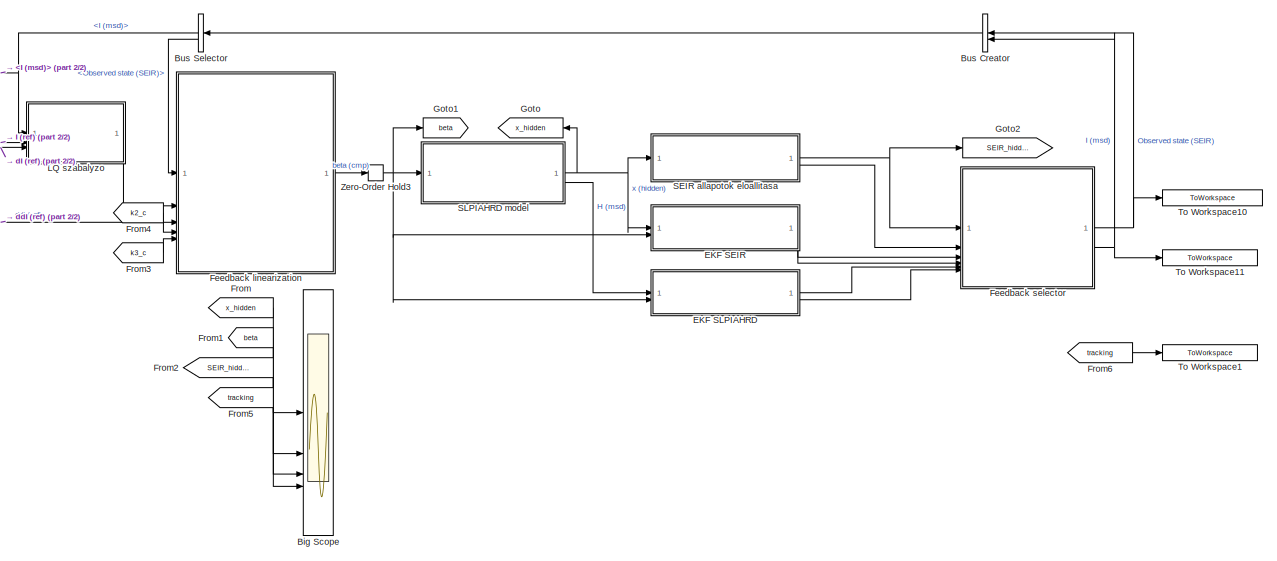
[diagram: root canvas - part 1/2, most of the canvas]
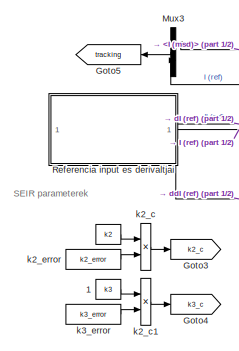
[diagram: root canvas - part 2/2, middle left region]
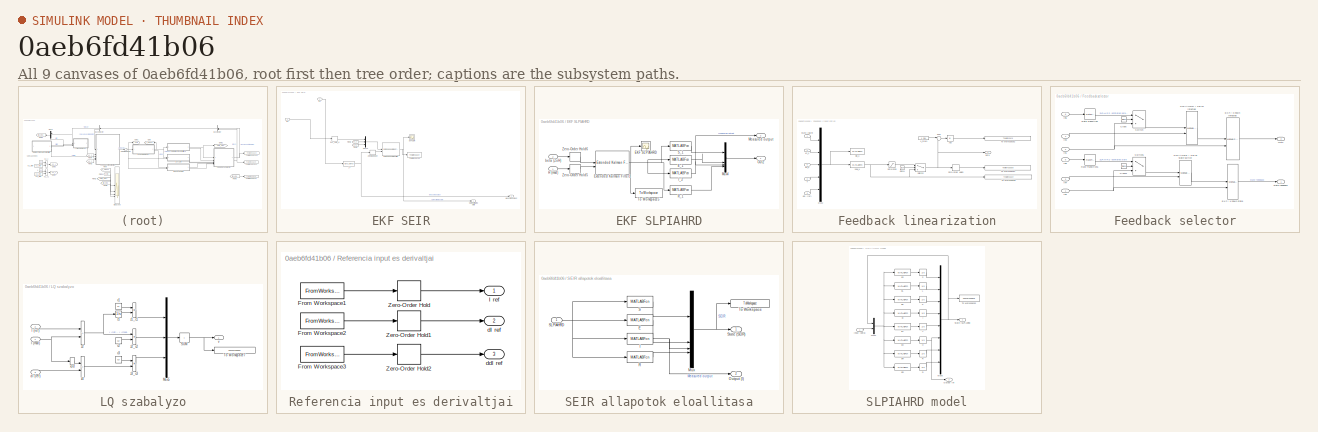
[diagram: thumbnail index - all 9 canvases of the model, root first then tree order]
MODEL slx_0aeb6fd41b06
KIND model
CONFIG AbsTol = auto
CONFIG EnableMultiTasking = off
CONFIG FixedStep = auto
CONFIG MaxStep = auto
CONFIG MinStep = auto
CONFIG RelTol = 1e-10
CONFIG SampleTimeConstraint = Unconstrained
CONFIG SolverName = VariableStepAuto
CONFIG StartTime = 0.0
CONFIG StopTime = tf
BLOCK [Constant]  
  Value = k2
BLOCK [Constant]  1
  Value = k3
BLOCK [Scope] Big Scope
  Floating = off
  NumInputPorts = 8
  ScopeSpecificationString = Simulink.scopes.TimeScopeBlockCfg('CurrentConfiguration', extmgr.ConfigurationSet(extmgr.Configuration('Core','General UI',true,'FigureColor',[1 1 1]),extmgr.Configuration('Core','Source UI',true),extmgr.Configuration('Sources','WiredSimulink',true,'DataLoggingVariableName','ScopeData1'),extmgr.Configuration('Visuals','Time Domain',true,'SerializedDisplays',{struct('MinYLimReal','-0.125','MaxYLimR...<+7369ch>
BLOCK [BusCreator] Bus Creator
  DisplayOption = bar
  InheritFromInputs = on
  Inputs = 2
  NameLocation = top
BLOCK [BusSelector] Bus Selector
  NameLocation = top
  OutputSignals = I (msd),Observed state (SEIR)
BLOCK [SubSystem] EKF SEIR
  NameLocation = right
BLOCK [Scope] EKF SEIR/EKF SEIR
  Floating = off
  NumInputPorts = 1
  ScopeSpecificationString = Simulink.scopes.TimeScopeBlockCfg('CurrentConfiguration', extmgr.ConfigurationSet(extmgr.Configuration('Core','General UI',true),extmgr.Configuration('Core','Source UI',true),extmgr.Configuration('Sources','WiredSimulink',true,'DataLoggingVariableName','ScopeData1'),extmgr.Configuration('Visuals','Time Domain',true,'SerializedDisplays',{struct('MinYLimReal','-0.125','MaxYLimReal','1.125','YLabelRe...<+1468ch>
BLOCK [ZeroOrderHold] EKF SEIR/EKF_SEIR_U
  SampleTime = ekf_sample_time
BLOCK [Reference] EKF SEIR/Extended Kalman Filter  REF=sharedTrackingLibrary/Extended Kalman Filter
  SourceBlock = sharedTrackingLibrary/Extended Kalman Filter
  SourceType = Extended Kalman Filter
BLOCK [From] EKF SEIR/From1
  GotoTag = k3_c
BLOCK [From] EKF SEIR/From2
  GotoTag = k2_c
BLOCK [MATLABFcn] EKF SEIR/I_1
  MATLABFcn = u(3)+u(4)+u(5)
  Output1D = off
  OutputDimensions = 1
BLOCK [Inport] EKF SEIR/In1
BLOCK [Inport] EKF SEIR/In2
  Port = 2
BLOCK [Outport] EKF SEIR/Measured output
  Port = 2
BLOCK [Mux] EKF SEIR/Mux10
  DisplayOption = bar
  Inputs = 3
BLOCK [Outport] EKF SEIR/SEIR estimated state
BLOCK [ToWorkspace] EKF SEIR/To Workspace9
  FixptAsFi = on
  MaxDataPoints = inf
  SampleTime = -1
  SaveFormat = Timeseries
  VariableName = ekf_seir
BLOCK [ZeroOrderHold] EKF SEIR/Zero-Order Hold4
  SampleTime = ekf_sample_time
BLOCK [SubSystem] EKF SLPIAHRD
  NameLocation = right
BLOCK [Scope] EKF SLPIAHRD/EKF SLPIAHRD
  Floating = off
  NumInputPorts = 1
  ScopeSpecificationString = Simulink.scopes.TimeScopeBlockCfg('CurrentConfiguration', extmgr.ConfigurationSet(extmgr.Configuration('Core','General UI',true),extmgr.Configuration('Core','Source UI',true),extmgr.Configuration('Sources','WiredSimulink',true,'DataLoggingVariableName','ScopeData1'),extmgr.Configuration('Visuals','Time Domain',true,'SerializedDisplays',{struct('MinYLimReal','-0.125','MaxYLimReal','1.12499','YLabel...<+1605ch>
BLOCK [MATLABFcn] EKF SLPIAHRD/E_1
  MATLABFcn = u(2)
BLOCK [Reference] EKF SLPIAHRD/Extended Kalman Filter1  REF=sharedTrackingLibrary/Extended Kalman Filter
  SourceBlock = sharedTrackingLibrary/Extended Kalman Filter
  SourceType = Extended Kalman Filter
BLOCK [Inport] EKF SLPIAHRD/H (msd)
BLOCK [MATLABFcn] EKF SLPIAHRD/I_2
  MATLABFcn = u(3)+u(4)+u(5)
BLOCK [Outport] EKF SLPIAHRD/Measured output
  Port = 2
BLOCK [Mux] EKF SLPIAHRD/Mux4
  DisplayOption = bar
BLOCK [Outport] EKF SLPIAHRD/Out2
BLOCK [MATLABFcn] EKF SLPIAHRD/R_1
  MATLABFcn = u(6)+u(7)+u(8)
BLOCK [MATLABFcn] EKF SLPIAHRD/S_1
  MATLABFcn = u(1)
BLOCK [ToWorkspace] EKF SLPIAHRD/To Workspace5
  FixptAsFi = on
  MaxDataPoints = inf
  SampleTime = -1
  SaveFormat = Timeseries
  VariableName = ekf_slpiahrd
BLOCK [ZeroOrderHold] EKF SLPIAHRD/Zero-Order Hold5
  SampleTime = ekf_sample_time
BLOCK [ZeroOrderHold] EKF SLPIAHRD/Zero-Order Hold6
  NameLocation = top
  SampleTime = ekf_sample_time
BLOCK [Inport] EKF SLPIAHRD/beta (ZoH)
  NameLocation = left
  Port = 2
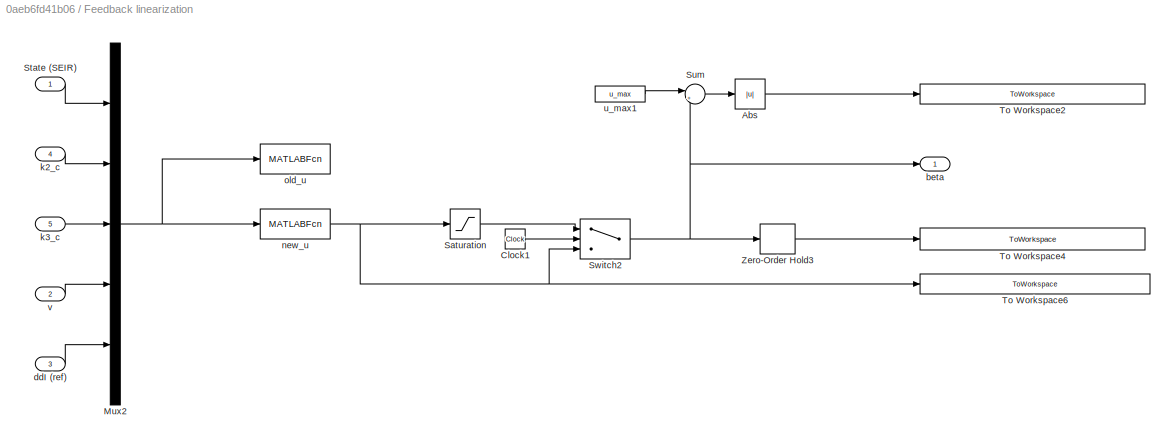
BLOCK [SubSystem] Feedback linearization
  NameLocation = top
BLOCK [Constant] Feedback linearization/ u_max1
  Value = u_max
BLOCK [Abs] Feedback linearization/Abs
  SaturateOnIntegerOverflow = off
BLOCK [Clock] Feedback linearization/Clock1
BLOCK [Mux] Feedback linearization/Mux2
  DisplayOption = bar
  Inputs = 5
BLOCK [Saturate] Feedback linearization/Saturation
  LowerLimit = u_min
  UpperLimit = u_max
BLOCK [Inport] Feedback linearization/State (SEIR)
  NameLocation = left
BLOCK [Sum] Feedback linearization/Sum
  Inputs = |+-
BLOCK [Switch] Feedback linearization/Switch2
  InputSameDT = off
  SaturateOnIntegerOverflow = off
BLOCK [ToWorkspace] Feedback linearization/To Workspace2
  FixptAsFi = on
  MaxDataPoints = inf
  SampleTime = -1
  SaveFormat = Timeseries
  VariableName = coi_tmp
BLOCK [ToWorkspace] Feedback linearization/To Workspace4
  FixptAsFi = on
  MaxDataPoints = inf
  SampleTime = -1
  SaveFormat = Timeseries
  VariableName = system_input
BLOCK [ToWorkspace] Feedback linearization/To Workspace6
  FixptAsFi = on
  MaxDataPoints = inf
  SampleTime = -1
  SaveFormat = Timeseries
  VariableName = raw_system_input
BLOCK [ZeroOrderHold] Feedback linearization/Zero-Order Hold3
  SampleTime = input_sample_time
BLOCK [Outport] Feedback linearization/beta
  NameLocation = right
BLOCK [Inport] Feedback linearization/ddI (ref)
  NameLocation = left
  Port = 3
BLOCK [Inport] Feedback linearization/k2_c
  NameLocation = left
  Port = 4
BLOCK [Inport] Feedback linearization/k3_c
  NameLocation = left
  Port = 5
BLOCK [MATLABFcn] Feedback linearization/new_u
  MATLABFcn = (u(8)-u(7)+(u(5)*u(6)+u(5)^2)*u(2)-u(6)^2*u(3))/(u(5)*u(1)*u(3))
BLOCK [MATLABFcn] Feedback linearization/old_u
  MATLABFcn = u(8)+(-u(7)+(u(5)*u(6)+u(5)^2)*u(2)-u(6)^2*u(3))/(u(5)*u(1)*u(3))
BLOCK [Inport] Feedback linearization/v
  NameLocation = left
  Port = 2
BLOCK [SubSystem] Feedback selector
BLOCK [Clock] Feedback selector/Clock
BLOCK [Clock] Feedback selector/Clock1
BLOCK [ManualSwitch] Feedback selector/EKF // Known infected
  CurrentSetting = 0
  NameLocation = top
BLOCK [ManualSwitch] Feedback selector/EKF // Known state
  CurrentSetting = 0
BLOCK [Inport] Feedback selector/In1
  Port = 2
BLOCK [Inport] Feedback selector/In2
BLOCK [Inport] Feedback selector/In3
  Port = 4
BLOCK [Inport] Feedback selector/In4
  Port = 3
BLOCK [Inport] Feedback selector/In5
  Port = 6
BLOCK [Inport] Feedback selector/In6
  Port = 5
BLOCK [Outport] Feedback selector/Out2
  NameLocation = top
  Port = 2
BLOCK [RateTransition] Feedback selector/Rate Transition
  Integrity = off
  OutPortSampleTime = ratetrans_sample_time
  OutPortSampleTimeMultiple = 2
BLOCK [RateTransition] Feedback selector/Rate Transition1
  Integrity = off
  OutPortSampleTime = ratetrans_sample_time
BLOCK [ManualSwitch] Feedback selector/SLPIAHRD // SEIR infected
  CurrentSetting = 0
  NameLocation = top
BLOCK [ManualSwitch] Feedback selector/SLPIAHRD // SEIR state switch
  CurrentSetting = 0
  NameLocation = top
BLOCK [Switch] Feedback selector/Switch
  Criteria = u2 > Threshold
  InputSameDT = off
  SaturateOnIntegerOverflow = off
  Threshold = switchtime
BLOCK [Switch] Feedback selector/Switch1
  Criteria = u2 > Threshold
  InputSameDT = off
  SaturateOnIntegerOverflow = off
  Threshold = switchtime
BLOCK [Outport] Feedback selector/state feedback
BLOCK [From] From
  GotoTag = x_hidden
BLOCK [From] From1
  GotoTag = beta
BLOCK [From] From2
  GotoTag = SEIR_hidden
BLOCK [From] From3
  GotoTag = k3_c
BLOCK [From] From4
  GotoTag = k2_c
BLOCK [From] From5
  GotoTag = tracking
  NameLocation = top
BLOCK [From] From6
  GotoTag = tracking
  NameLocation = top
BLOCK [Goto] Goto
  GotoTag = x_hidden
  NameLocation = top
BLOCK [Goto] Goto1
  GotoTag = beta
BLOCK [Goto] Goto2
  GotoTag = SEIR_hidden
BLOCK [Goto] Goto3
  GotoTag = k2_c
BLOCK [Goto] Goto4
  GotoTag = k3_c
BLOCK [Goto] Goto5
  GotoTag = tracking
  NameLocation = top
BLOCK [SubSystem] LQ szabalyzo
  NameLocation = top
BLOCK [Constant] LQ szabalyzo/ c1
  NameLocation = left
  Value = c1
BLOCK [Constant] LQ szabalyzo/ c2
  Value = c2
BLOCK [Constant] LQ szabalyzo/ c3
  Value = c3
BLOCK [Inport] LQ szabalyzo/I (msd)
  NameLocation = left
BLOCK [Inport] LQ szabalyzo/I (ref)
  NameLocation = left
  Port = 2
BLOCK [Mux] LQ szabalyzo/Mux5
  DisplayOption = bar
  Inputs = 3
BLOCK [Sum] LQ szabalyzo/SUM
  IconShape = rectangular
  Inputs = +
BLOCK [ToWorkspace] LQ szabalyzo/To Workspace7
  FixptAsFi = on
  MaxDataPoints = inf
  SampleTime = -1
  SaveFormat = Timeseries
  VariableName = controller_output
BLOCK [Inport] LQ szabalyzo/dI (ref)
  NameLocation = left
  Port = 3
BLOCK [Outport] LQ szabalyzo/v
  NameLocation = right
BLOCK [Derivative] LQ szabalyzo/x3d
BLOCK [Integrator] LQ szabalyzo/z1
  InitialCondition = z1_start
BLOCK [Product] LQ szabalyzo/z1_c1
BLOCK [Sum] LQ szabalyzo/z2
  IconShape = rectangular
  Inputs = +-
BLOCK [Product] LQ szabalyzo/z2_c2
BLOCK [Sum] LQ szabalyzo/z3
  IconShape = rectangular
  Inputs = -+
BLOCK [Product] LQ szabalyzo/z3_c3
BLOCK [Mux] Mux3
  DisplayOption = bar
  Inputs = 2
  NameLocation = top
BLOCK [SubSystem] Referencia input es derivaltjai
BLOCK [FromWorkspace] Referencia input es derivaltjai/From Workspace1
  SampleTime = dt
  VariableName = Iref
BLOCK [FromWorkspace] Referencia input es derivaltjai/From Workspace2
  SampleTime = dt
  VariableName = Irefd
BLOCK [FromWorkspace] Referencia input es derivaltjai/From Workspace3
  SampleTime = dt
  VariableName = Irefdd
BLOCK [Outport] Referencia input es derivaltjai/I ref
  NameLocation = right
BLOCK [ZeroOrderHold] Referencia input es derivaltjai/Zero-Order Hold
  SampleTime = ref_sample_time
BLOCK [ZeroOrderHold] Referencia input es derivaltjai/Zero-Order Hold1
  SampleTime = ref_sample_time
BLOCK [ZeroOrderHold] Referencia input es derivaltjai/Zero-Order Hold2
  SampleTime = ref_sample_time
BLOCK [Outport] Referencia input es derivaltjai/dI ref
  NameLocation = right
  Port = 2
BLOCK [Outport] Referencia input es derivaltjai/ddI ref
  NameLocation = right
  Port = 3
BLOCK [SubSystem] SEIR allapotok eloallitasa
BLOCK [MATLABFcn] SEIR allapotok eloallitasa/E
  MATLABFcn = u(2)
BLOCK [MATLABFcn] SEIR allapotok eloallitasa/I
  MATLABFcn = u(3)+u(4)+u(5)
BLOCK [Mux] SEIR allapotok eloallitasa/Mux
  DisplayOption = bar
BLOCK [Outport] SEIR allapotok eloallitasa/Output (I)
  NameLocation = right
  Port = 2
BLOCK [MATLABFcn] SEIR allapotok eloallitasa/R
  MATLABFcn = u(6)+u(7)+u(8)
BLOCK [MATLABFcn] SEIR allapotok eloallitasa/S
  MATLABFcn = u(1)
BLOCK [Inport] SEIR allapotok eloallitasa/SLPIAHRD
  NameLocation = left
BLOCK [Outport] SEIR allapotok eloallitasa/State (SEIR)
  NameLocation = right
BLOCK [ToWorkspace] SEIR allapotok eloallitasa/To Workspace
  FixptAsFi = on
  MaxDataPoints = inf
  SampleTime = -1
  SaveFormat = Structure With Time
  VariableName = seir_states
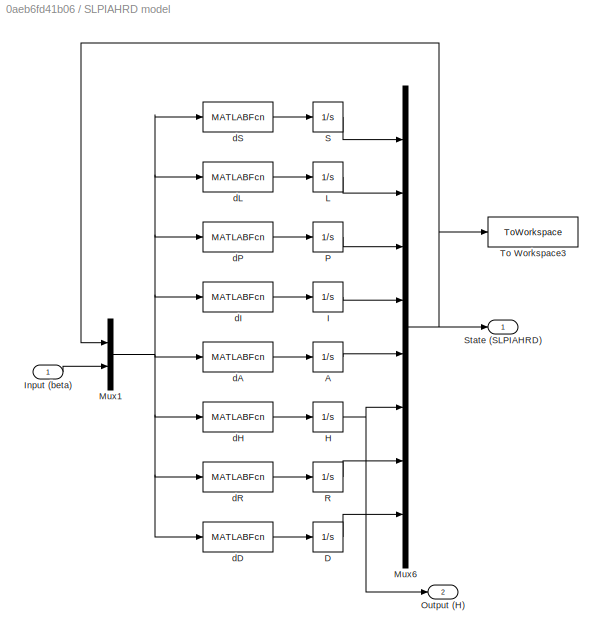
BLOCK [SubSystem] SLPIAHRD model
BLOCK [Integrator] SLPIAHRD model/A
  InitialCondition = x0(5)
BLOCK [Integrator] SLPIAHRD model/D
  InitialCondition = x0(8)
BLOCK [Integrator] SLPIAHRD model/H
  InitialCondition = x0(6)
BLOCK [Integrator] SLPIAHRD model/I
  InitialCondition = x0(4)
BLOCK [Inport] SLPIAHRD model/Input (beta)
  NameLocation = left
BLOCK [Integrator] SLPIAHRD model/L
  InitialCondition = x0(2)
BLOCK [Mux] SLPIAHRD model/Mux1
  DisplayOption = bar
  Inputs = 2
BLOCK [Mux] SLPIAHRD model/Mux6
  DisplayOption = bar
  Inputs = 8
BLOCK [Outport] SLPIAHRD model/Output (H)
  NameLocation = right
  Port = 2
BLOCK [Integrator] SLPIAHRD model/P
  InitialCondition = x0(3)
BLOCK [Integrator] SLPIAHRD model/R
  InitialCondition = x0(7)
BLOCK [Integrator] SLPIAHRD model/S
  InitialCondition = x0(1)
BLOCK [Outport] SLPIAHRD model/State (SLPIAHRD)
  NameLocation = right
BLOCK [ToWorkspace] SLPIAHRD model/To Workspace3
  FixptAsFi = on
  MaxDataPoints = inf
  SampleTime = -1
  SaveFormat = Timeseries
  VariableName = slpiahrd_states
BLOCK [MATLABFcn] SLPIAHRD model/dA
  MATLABFcn = ((1 - q) * p * u(3) - p_A * u(5))/N
  Output1D = off
BLOCK [MATLABFcn] SLPIAHRD model/dD
  MATLABFcn = (mu * h * u(6))/N
  Output1D = off
BLOCK [MATLABFcn] SLPIAHRD model/dH
  MATLABFcn = (p_I * eta * u(4) - h * u(6))/N
  Output1D = off
BLOCK [MATLABFcn] SLPIAHRD model/dI
  MATLABFcn = (q * p * u(3) - p_I * u(4))/N
  Output1D = off
BLOCK [MATLABFcn] SLPIAHRD model/dL
  MATLABFcn = u(9)*(u(3)+u(4)+delta*u(5))*u(1)/N-alpha*u(2)
  Output1D = off
BLOCK [MATLABFcn] SLPIAHRD model/dP
  MATLABFcn = (alpha * u(2)) - (p *u(3))
  Output1D = off
BLOCK [MATLABFcn] SLPIAHRD model/dR
  MATLABFcn = (p_I * (1 - eta) * u(4) + p_A * u(5) + (1 - mu) * h * u(6))/N
  Output1D = off
BLOCK [MATLABFcn] SLPIAHRD model/dS
  MATLABFcn = -u(9) * (u(3) + u(4) + delta * u(5)) * u(1) / N
  Output1D = off
BLOCK [ToWorkspace] To Workspace1
  FixptAsFi = on
  MaxDataPoints = inf
  SampleTime = -1
  SaveFormat = Structure With Time
  VariableName = I_v_ref
BLOCK [ToWorkspace] To Workspace10
  FixptAsFi = on
  MaxDataPoints = inf
  SampleTime = -1
  SaveFormat = Timeseries
  VariableName = feedback_state
BLOCK [ToWorkspace] To Workspace11
  FixptAsFi = on
  MaxDataPoints = inf
  SampleTime = -1
  SaveFormat = Timeseries
  VariableName = feedback_output
BLOCK [ZeroOrderHold] Zero-Order Hold3
  SampleTime = input_sample_time
BLOCK [Product] k2_c
BLOCK [Product] k2_c1
BLOCK [Constant] k2_error
  Value = k2_error
BLOCK [Constant] k3_error
  Value = k3_error
ANNOTATION (root): SEIR parameterek
LINE  1:1 -> k2_c1:1
LINE  :1 -> k2_c:1
LINE Bus Creator:1 -> Bus Selector:1
NET Bus Selector:1 -> LQ szabalyzo:1, Mux3:1
LINE Bus Selector:2 -> Feedback linearization:1
LINE EKF SEIR/EKF_SEIR_U:1 -> EKF SEIR/Mux10:1
NET EKF SEIR/Extended Kalman Filter:1 -> EKF SEIR/EKF SEIR:1, EKF SEIR/SEIR estimated state:1, EKF SEIR/To Workspace9:1
LINE EKF SEIR/From1:1 -> EKF SEIR/Mux10:3
LINE EKF SEIR/From2:1 -> EKF SEIR/Mux10:2
NET EKF SEIR/I_1:1 -> EKF SEIR/Measured output:1, EKF SEIR/Zero-Order Hold4:1
LINE EKF SEIR/In1:1 -> EKF SEIR/I_1:1
LINE EKF SEIR/In2:1 -> EKF SEIR/EKF_SEIR_U:1
LINE EKF SEIR/Mux10:1 -> EKF SEIR/Extended Kalman Filter:1
LINE EKF SEIR/Zero-Order Hold4:1 -> EKF SEIR/Extended Kalman Filter:2
LINE EKF SEIR:1 -> Feedback selector:3
LINE EKF SEIR:2 -> Feedback selector:4
LINE EKF SLPIAHRD/E_1:1 -> EKF SLPIAHRD/Mux4:2
NET EKF SLPIAHRD/Extended Kalman Filter1:1 -> EKF SLPIAHRD/EKF SLPIAHRD:1, EKF SLPIAHRD/E_1:1, EKF SLPIAHRD/I_2:1, EKF SLPIAHRD/R_1:1, EKF SLPIAHRD/S_1:1, EKF SLPIAHRD/To Workspace5:1
LINE EKF SLPIAHRD/H (msd):1 -> EKF SLPIAHRD/Zero-Order Hold5:1
NET EKF SLPIAHRD/I_2:1 -> EKF SLPIAHRD/Measured output:1, EKF SLPIAHRD/Mux4:3
LINE EKF SLPIAHRD/Mux4:1 -> EKF SLPIAHRD/Out2:1
LINE EKF SLPIAHRD/R_1:1 -> EKF SLPIAHRD/Mux4:4
LINE EKF SLPIAHRD/S_1:1 -> EKF SLPIAHRD/Mux4:1
LINE EKF SLPIAHRD/Zero-Order Hold5:1 -> EKF SLPIAHRD/Extended Kalman Filter1:2
LINE EKF SLPIAHRD/Zero-Order Hold6:1 -> EKF SLPIAHRD/Extended Kalman Filter1:1
LINE EKF SLPIAHRD/beta (ZoH):1 -> EKF SLPIAHRD/Zero-Order Hold6:1
LINE EKF SLPIAHRD:1 -> Feedback selector:5
LINE EKF SLPIAHRD:2 -> Feedback selector:6
LINE Feedback linearization/ u_max1:1 -> Feedback linearization/Sum:1
LINE Feedback linearization/Abs:1 -> Feedback linearization/To Workspace2:1
LINE Feedback linearization/Clock1:1 -> Feedback linearization/Switch2:2
NET Feedback linearization/Mux2:1 -> Feedback linearization/new_u:1, Feedback linearization/old_u:1
LINE Feedback linearization/Saturation:1 -> Feedback linearization/Switch2:1
LINE Feedback linearization/State (SEIR):1 -> Feedback linearization/Mux2:1
LINE Feedback linearization/Sum:1 -> Feedback linearization/Abs:1
NET Feedback linearization/Switch2:1 -> Feedback linearization/Sum:2, Feedback linearization/Zero-Order Hold3:1, Feedback linearization/beta:1
LINE Feedback linearization/Zero-Order Hold3:1 -> Feedback linearization/To Workspace4:1
LINE Feedback linearization/ddI (ref):1 -> Feedback linearization/Mux2:5
LINE Feedback linearization/k2_c:1 -> Feedback linearization/Mux2:2
LINE Feedback linearization/k3_c:1 -> Feedback linearization/Mux2:3
NET Feedback linearization/new_u:1 -> Feedback linearization/Saturation:1, Feedback linearization/Switch2:3, Feedback linearization/To Workspace6:1
LINE Feedback linearization/v:1 -> Feedback linearization/Mux2:4
LINE Feedback linearization:1 -> Zero-Order Hold3:1
LINE Feedback selector/Clock1:1 -> Feedback selector/Switch1:2
LINE Feedback selector/Clock:1 -> Feedback selector/Switch:2
LINE Feedback selector/EKF // Known infected:1 -> Feedback selector/Out2:1
LINE Feedback selector/EKF // Known state:1 -> Feedback selector/state feedback:1
NET Feedback selector/In1:1 -> Feedback selector/EKF // Known infected:2, Feedback selector/Switch:3
NET Feedback selector/In2:1 -> Feedback selector/EKF // Known state:2, Feedback selector/Switch1:3
LINE Feedback selector/In3:1 -> Feedback selector/SLPIAHRD // SEIR infected:2
LINE Feedback selector/In4:1 -> Feedback selector/SLPIAHRD // SEIR state switch:2
LINE Feedback selector/In5:1 -> Feedback selector/Rate Transition:1
LINE Feedback selector/In6:1 -> Feedback selector/Rate Transition1:1
LINE Feedback selector/Rate Transition1:1 -> Feedback selector/Switch1:1
LINE Feedback selector/Rate Transition:1 -> Feedback selector/Switch:1
LINE Feedback selector/SLPIAHRD // SEIR infected:1 -> Feedback selector/EKF // Known infected:1
LINE Feedback selector/SLPIAHRD // SEIR state switch:1 -> Feedback selector/EKF // Known state:1
LINE Feedback selector/Switch1:1 -> Feedback selector/SLPIAHRD // SEIR state switch:1
LINE Feedback selector/Switch:1 -> Feedback selector/SLPIAHRD // SEIR infected:1
NET Feedback selector:1 -> Bus Creator:1, To Workspace10:1
NET Feedback selector:2 -> Bus Creator:2, To Workspace11:1
LINE From1:1 -> Big Scope:2
LINE From2:1 -> Big Scope:3
LINE From3:1 -> Feedback linearization:5
LINE From4:1 -> Feedback linearization:4
LINE From5:1 -> Big Scope:4
LINE From6:1 -> To Workspace1:1
LINE From:1 -> Big Scope:1
LINE LQ szabalyzo/ c1:1 -> LQ szabalyzo/z1_c1:1
LINE LQ szabalyzo/ c2:1 -> LQ szabalyzo/z2_c2:2
LINE LQ szabalyzo/ c3:1 -> LQ szabalyzo/z3_c3:1
NET LQ szabalyzo/I (msd):1 -> LQ szabalyzo/x3d:1, LQ szabalyzo/z2:2
LINE LQ szabalyzo/I (ref):1 -> LQ szabalyzo/z2:1
LINE LQ szabalyzo/Mux5:1 -> LQ szabalyzo/SUM:1
NET LQ szabalyzo/SUM:1 -> LQ szabalyzo/To Workspace7:1, LQ szabalyzo/v:1
LINE LQ szabalyzo/dI (ref):1 -> LQ szabalyzo/z3:2
LINE LQ szabalyzo/x3d:1 -> LQ szabalyzo/z3:1
LINE LQ szabalyzo/z1:1 -> LQ szabalyzo/z1_c1:2
LINE LQ szabalyzo/z1_c1:1 -> LQ szabalyzo/Mux5:1
NET LQ szabalyzo/z2:1 -> LQ szabalyzo/z1:1, LQ szabalyzo/z2_c2:1
LINE LQ szabalyzo/z2_c2:1 -> LQ szabalyzo/Mux5:2
LINE LQ szabalyzo/z3:1 -> LQ szabalyzo/z3_c3:2
LINE LQ szabalyzo/z3_c3:1 -> LQ szabalyzo/Mux5:3
LINE LQ szabalyzo:1 -> Feedback linearization:2
LINE Mux3:1 -> Goto5:1
LINE Referencia input es derivaltjai/From Workspace1:1 -> Referencia input es derivaltjai/Zero-Order Hold:1
LINE Referencia input es derivaltjai/From Workspace2:1 -> Referencia input es derivaltjai/Zero-Order Hold1:1
LINE Referencia input es derivaltjai/From Workspace3:1 -> Referencia input es derivaltjai/Zero-Order Hold2:1
LINE Referencia input es derivaltjai/Zero-Order Hold1:1 -> Referencia input es derivaltjai/dI ref:1
LINE Referencia input es derivaltjai/Zero-Order Hold2:1 -> Referencia input es derivaltjai/ddI ref:1
LINE Referencia input es derivaltjai/Zero-Order Hold:1 -> Referencia input es derivaltjai/I ref:1
NET Referencia input es derivaltjai:1 -> LQ szabalyzo:2, Mux3:2
LINE Referencia input es derivaltjai:2 -> LQ szabalyzo:3
LINE Referencia input es derivaltjai:3 -> Feedback linearization:3
LINE SEIR allapotok eloallitasa/E:1 -> SEIR allapotok eloallitasa/Mux:2
NET SEIR allapotok eloallitasa/I:1 -> SEIR allapotok eloallitasa/Mux:3, SEIR allapotok eloallitasa/Output (I):1
NET SEIR allapotok eloallitasa/Mux:1 -> SEIR allapotok eloallitasa/State (SEIR):1, SEIR allapotok eloallitasa/To Workspace:1
LINE SEIR allapotok eloallitasa/R:1 -> SEIR allapotok eloallitasa/Mux:4
LINE SEIR allapotok eloallitasa/S:1 -> SEIR allapotok eloallitasa/Mux:1
NET SEIR allapotok eloallitasa/SLPIAHRD:1 -> SEIR allapotok eloallitasa/E:1, SEIR allapotok eloallitasa/I:1, SEIR allapotok eloallitasa/R:1, SEIR allapotok eloallitasa/S:1
NET SEIR allapotok eloallitasa:1 -> Feedback selector:1, Goto2:1
LINE SEIR allapotok eloallitasa:2 -> Feedback selector:2
LINE SLPIAHRD model/A:1 -> SLPIAHRD model/Mux6:5
LINE SLPIAHRD model/D:1 -> SLPIAHRD model/Mux6:8
NET SLPIAHRD model/H:1 -> SLPIAHRD model/Mux6:6, SLPIAHRD model/Output (H):1
LINE SLPIAHRD model/I:1 -> SLPIAHRD model/Mux6:4
LINE SLPIAHRD model/Input (beta):1 -> SLPIAHRD model/Mux1:2
LINE SLPIAHRD model/L:1 -> SLPIAHRD model/Mux6:2
NET SLPIAHRD model/Mux1:1 -> SLPIAHRD model/dA:1, SLPIAHRD model/dD:1, SLPIAHRD model/dH:1, SLPIAHRD model/dI:1, SLPIAHRD model/dL:1, SLPIAHRD model/dP:1, SLPIAHRD model/dR:1, SLPIAHRD model/dS:1
NET SLPIAHRD model/Mux6:1 -> SLPIAHRD model/Mux1:1, SLPIAHRD model/State (SLPIAHRD):1, SLPIAHRD model/To Workspace3:1
LINE SLPIAHRD model/P:1 -> SLPIAHRD model/Mux6:3
LINE SLPIAHRD model/R:1 -> SLPIAHRD model/Mux6:7
LINE SLPIAHRD model/S:1 -> SLPIAHRD model/Mux6:1
LINE SLPIAHRD model/dA:1 -> SLPIAHRD model/A:1
LINE SLPIAHRD model/dD:1 -> SLPIAHRD model/D:1
LINE SLPIAHRD model/dH:1 -> SLPIAHRD model/H:1
LINE SLPIAHRD model/dI:1 -> SLPIAHRD model/I:1
LINE SLPIAHRD model/dL:1 -> SLPIAHRD model/L:1
LINE SLPIAHRD model/dP:1 -> SLPIAHRD model/P:1
LINE SLPIAHRD model/dR:1 -> SLPIAHRD model/R:1
LINE SLPIAHRD model/dS:1 -> SLPIAHRD model/S:1
NET SLPIAHRD model:1 -> EKF SEIR:1, Goto:1, SEIR allapotok eloallitasa:1
LINE SLPIAHRD model:2 -> EKF SLPIAHRD:1
NET Zero-Order Hold3:1 -> EKF SEIR:2, EKF SLPIAHRD:2, Goto1:1, SLPIAHRD model:1
LINE k2_c1:1 -> Goto4:1
LINE k2_c:1 -> Goto3:1
LINE k2_error:1 -> k2_c:2
LINE k3_error:1 -> k2_c1:2
note: NET lines group one-source signal fan-out (src -> all destinations, sorted); 1:1 wires keep LINE
